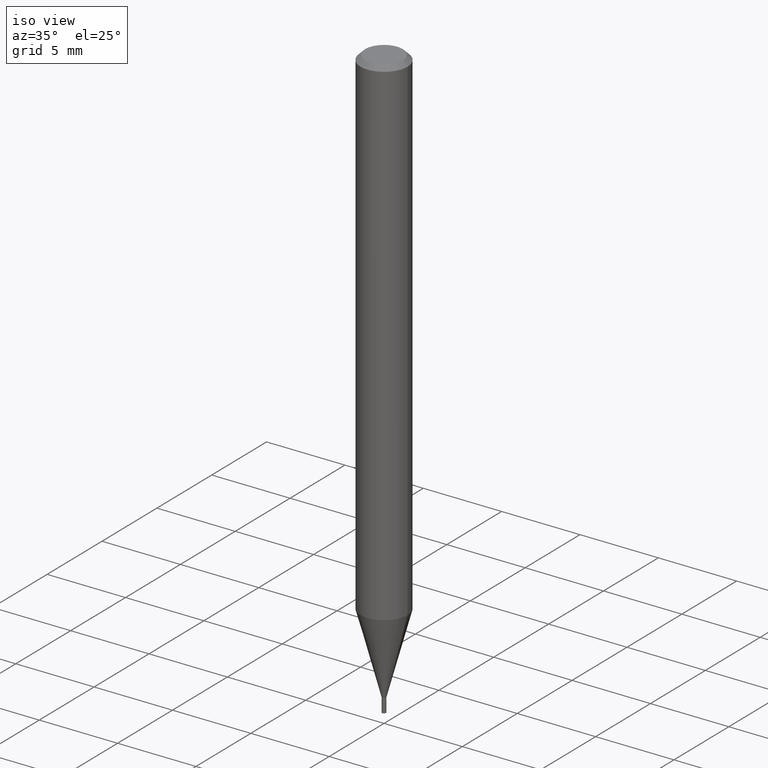
[diagram: clean part render]
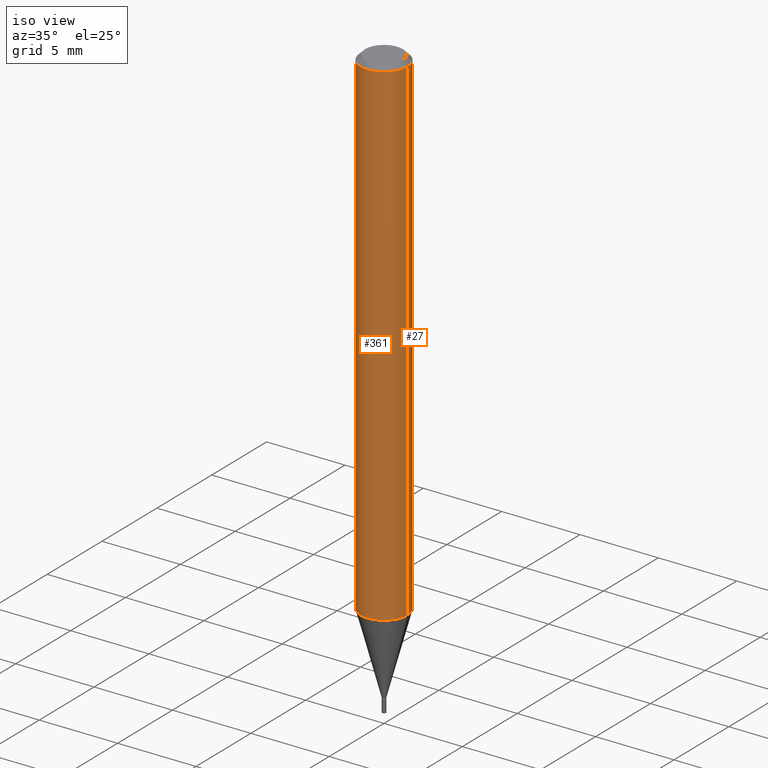
[diagram: same view with one multi-face feature highlighted, each face labeled with its STEP entity id]
A machine part, iso view. The highlighted faces form ONE feature: a constant-radius fillet chain: 2 tangent blend faces with common blend radius 1.4999 mm. The faces share edges in the B-rep.
Their STEP definitions:
[1] entity #27 (Cylinder):
#14 = EDGE_CURVE ( 'NONE', #232, #302, #92, .T. ) ;
#27 = ADVANCED_FACE ( 'NONE', ( #214 ), #247, .T. ) ;
#49 = EDGE_CURVE ( 'NONE', #302, #184, #111, .T. ) ;
#57 = EDGE_CURVE ( 'NONE', #150, #184, #178, .T. ) ;
#60 = ORIENTED_EDGE ( 'NONE', *, *, #119, .F. ) ;
#80 = DIRECTION ( 'NONE',  ( 1.000000000000000000, -6.982962677686268288E-15, 0.000000000000000000 ) ) ;
#82 = ORIENTED_EDGE ( 'NONE', *, *, #57, .F. ) ;
#86 = CARTESIAN_POINT ( 'NONE',  ( -0.05905000000000017180, -3.969598695798013952E-15, -1.257109448770144855 ) ) ;
#92 = CIRCLE ( 'NONE', #442, 0.05905000000000017180 ) ;
#99 = EDGE_LOOP ( 'NONE', ( #138, #230, #82, #60 ) ) ;
#111 = LINE ( 'NONE', #438, #297 ) ;
#115 = LINE ( 'NONE', #369, #192 ) ;
#119 = EDGE_CURVE ( 'NONE', #232, #150, #115, .T. ) ;
#132 = DIRECTION ( 'NONE',  ( 1.000000000000000000, -6.982962677686266711E-15, 0.000000000000000000 ) ) ;
#138 = ORIENTED_EDGE ( 'NONE', *, *, #14, .T. ) ;
#150 = VERTEX_POINT ( 'NONE', #396 ) ;
#178 = CIRCLE ( 'NONE', #256, 0.05904999999999999832 ) ;
#184 = VERTEX_POINT ( 'NONE', #489 ) ;
#192 = VECTOR ( 'NONE', #255, 39.37007874015748143 ) ;
#214 = FACE_OUTER_BOUND ( 'NONE', #99, .T. ) ;
#230 = ORIENTED_EDGE ( 'NONE', *, *, #49, .T. ) ;
#232 = VERTEX_POINT ( 'NONE', #378 ) ;
#247 = CYLINDRICAL_SURFACE ( 'NONE', #348, 0.05905000000000008159 ) ;
#251 = CARTESIAN_POINT ( 'NONE',  ( 2.888098660104664642E-31, -4.123439461173780879E-17, -0.01181000000000007565 ) ) ;
#255 = DIRECTION ( 'NONE',  ( -2.445468806185136877E-29, 3.491481338843145188E-15, 1.000000000000000000 ) ) ;
#256 = AXIS2_PLACEMENT_3D ( 'NONE', #251, #284, #132 ) ;
#284 = DIRECTION ( 'NONE',  ( -2.445468806185136597E-29, 3.491481338843145583E-15, 1.000000000000000000 ) ) ;
#295 = CARTESIAN_POINT ( 'NONE',  ( 0.000000000000000000, 0.000000000000000000, 0.000000000000000000 ) ) ;
#297 = VECTOR ( 'NONE', #474, 39.37007874015748143 ) ;
#302 = VERTEX_POINT ( 'NONE', #86 ) ;
#348 = AXIS2_PLACEMENT_3D ( 'NONE', #295, #449, #471 ) ;
#369 = CARTESIAN_POINT ( 'NONE',  ( 0.05905000000000008159, -4.123439461173746736E-16, 2.879382386107504424E-30 ) ) ;
#378 = CARTESIAN_POINT ( 'NONE',  ( 0.05905000000000017180, -4.801518127381729154E-15, -1.257109448770144855 ) ) ;
#396 = CARTESIAN_POINT ( 'NONE',  ( 0.05904999999999999832, -4.535783407291118600E-16, -0.01181000000000007565 ) ) ;
#419 = DIRECTION ( 'NONE',  ( -2.445468806185136597E-29, 3.491481338843145583E-15, 1.000000000000000000 ) ) ;
#438 = CARTESIAN_POINT ( 'NONE',  ( -0.05905000000000008159, 4.195754854663397395E-16, -2.904631170795525745E-30 ) ) ;
#442 = AXIS2_PLACEMENT_3D ( 'NONE', #457, #419, #80 ) ;
#449 = DIRECTION ( 'NONE',  ( -2.445468806185136597E-29, 3.491481338843145583E-15, 1.000000000000000000 ) ) ;
#457 = CARTESIAN_POINT ( 'NONE',  ( 3.074221942927981307E-29, -4.389174181264353445E-15, -1.257109448770144855 ) ) ;
#471 = DIRECTION ( 'NONE',  ( 1.000000000000000000, -6.982962677686267499E-15, 4.876176775795936353E-29 ) ) ;
#474 = DIRECTION ( 'NONE',  ( -2.445468806185136877E-29, 3.491481338843145188E-15, 1.000000000000000000 ) ) ;
#489 = CARTESIAN_POINT ( 'NONE',  ( -0.05904999999999999832, -1.795628802471704516E-15, -0.01181000000000007565 ) ) ;
[2] entity #361 (Cylinder):
#19 = CARTESIAN_POINT ( 'NONE',  ( 3.074221942927981307E-29, -4.389174181264353445E-15, -1.257109448770144855 ) ) ;
#49 = EDGE_CURVE ( 'NONE', #302, #184, #111, .T. ) ;
#50 = CARTESIAN_POINT ( 'NONE',  ( 2.888098660104664642E-31, -4.123439461173780879E-17, -0.01181000000000007565 ) ) ;
#86 = CARTESIAN_POINT ( 'NONE',  ( -0.05905000000000017180, -3.969598695798013952E-15, -1.257109448770144855 ) ) ;
#88 = DIRECTION ( 'NONE',  ( 1.000000000000000000, -6.982962677686267499E-15, 4.876176775795936353E-29 ) ) ;
#111 = LINE ( 'NONE', #438, #297 ) ;
#115 = LINE ( 'NONE', #369, #192 ) ;
#119 = EDGE_CURVE ( 'NONE', #232, #150, #115, .T. ) ;
#131 = EDGE_CURVE ( 'NONE', #302, #232, #243, .T. ) ;
#135 = DIRECTION ( 'NONE',  ( 1.000000000000000000, -6.982962677686266711E-15, 0.000000000000000000 ) ) ;
#150 = VERTEX_POINT ( 'NONE', #396 ) ;
#164 = AXIS2_PLACEMENT_3D ( 'NONE', #385, #349, #88 ) ;
#168 = AXIS2_PLACEMENT_3D ( 'NONE', #19, #176, #435 ) ;
#176 = DIRECTION ( 'NONE',  ( -2.445468806185136597E-29, 3.491481338843145583E-15, 1.000000000000000000 ) ) ;
#184 = VERTEX_POINT ( 'NONE', #489 ) ;
#192 = VECTOR ( 'NONE', #255, 39.37007874015748143 ) ;
#232 = VERTEX_POINT ( 'NONE', #378 ) ;
#240 = CYLINDRICAL_SURFACE ( 'NONE', #164, 0.05905000000000008159 ) ;
#243 = CIRCLE ( 'NONE', #168, 0.05905000000000017180 ) ;
#245 = ORIENTED_EDGE ( 'NONE', *, *, #49, .F. ) ;
#255 = DIRECTION ( 'NONE',  ( -2.445468806185136877E-29, 3.491481338843145188E-15, 1.000000000000000000 ) ) ;
#258 = CIRCLE ( 'NONE', #411, 0.05904999999999999832 ) ;
#287 = DIRECTION ( 'NONE',  ( -2.445468806185136597E-29, 3.491481338843145583E-15, 1.000000000000000000 ) ) ;
#297 = VECTOR ( 'NONE', #474, 39.37007874015748143 ) ;
#302 = VERTEX_POINT ( 'NONE', #86 ) ;
#329 = ORIENTED_EDGE ( 'NONE', *, *, #131, .T. ) ;
#349 = DIRECTION ( 'NONE',  ( -2.445468806185136597E-29, 3.491481338843145583E-15, 1.000000000000000000 ) ) ;
#361 = ADVANCED_FACE ( 'NONE', ( #427 ), #240, .T. ) ;
#369 = CARTESIAN_POINT ( 'NONE',  ( 0.05905000000000008159, -4.123439461173746736E-16, 2.879382386107504424E-30 ) ) ;
#378 = CARTESIAN_POINT ( 'NONE',  ( 0.05905000000000017180, -4.801518127381729154E-15, -1.257109448770144855 ) ) ;
#381 = EDGE_LOOP ( 'NONE', ( #245, #329, #460, #407 ) ) ;
#385 = CARTESIAN_POINT ( 'NONE',  ( 0.000000000000000000, 0.000000000000000000, 0.000000000000000000 ) ) ;
#396 = CARTESIAN_POINT ( 'NONE',  ( 0.05904999999999999832, -4.535783407291118600E-16, -0.01181000000000007565 ) ) ;
#407 = ORIENTED_EDGE ( 'NONE', *, *, #453, .F. ) ;
#411 = AXIS2_PLACEMENT_3D ( 'NONE', #50, #287, #135 ) ;
#427 = FACE_OUTER_BOUND ( 'NONE', #381, .T. ) ;
#435 = DIRECTION ( 'NONE',  ( 1.000000000000000000, -6.982962677686268288E-15, 0.000000000000000000 ) ) ;
#438 = CARTESIAN_POINT ( 'NONE',  ( -0.05905000000000008159, 4.195754854663397395E-16, -2.904631170795525745E-30 ) ) ;
#453 = EDGE_CURVE ( 'NONE', #184, #150, #258, .T. ) ;
#460 = ORIENTED_EDGE ( 'NONE', *, *, #119, .T. ) ;
#474 = DIRECTION ( 'NONE',  ( -2.445468806185136877E-29, 3.491481338843145188E-15, 1.000000000000000000 ) ) ;
#489 = CARTESIAN_POINT ( 'NONE',  ( -0.05904999999999999832, -1.795628802471704516E-15, -0.01181000000000007565 ) ) ;